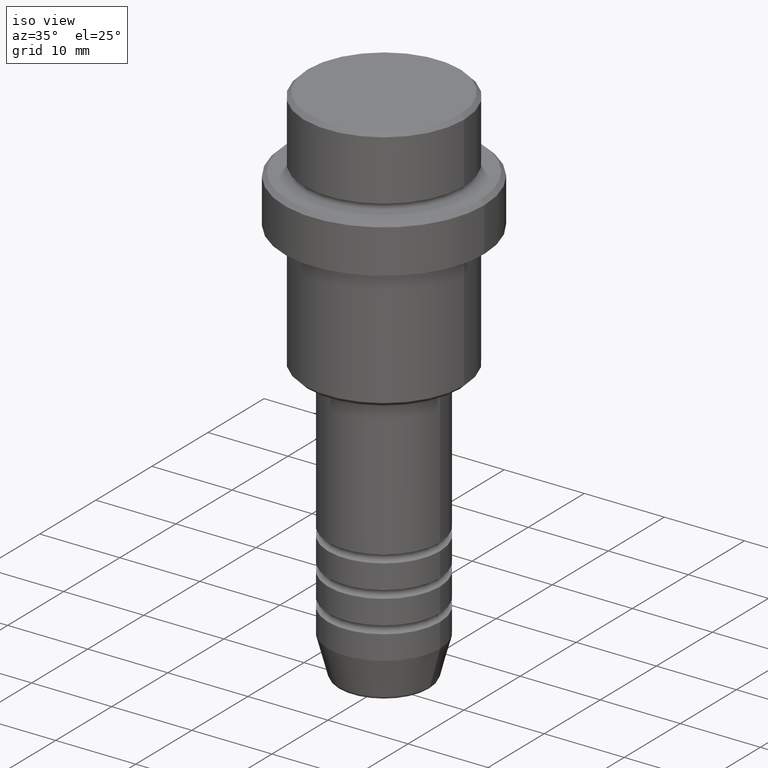
[diagram: clean part render]
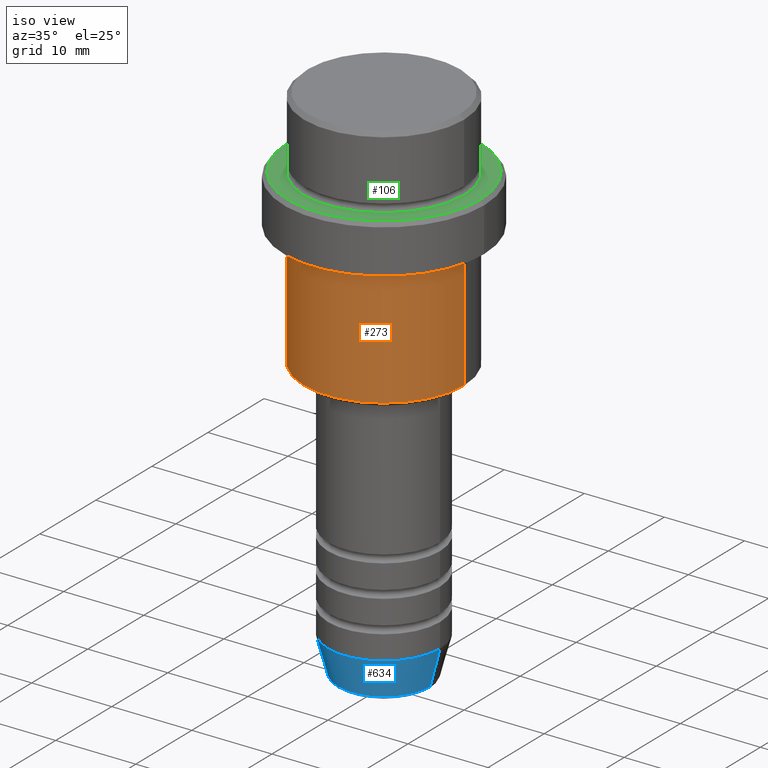
[diagram: same view with three faces highlighted in distinct colors, each labeled with its STEP entity id]
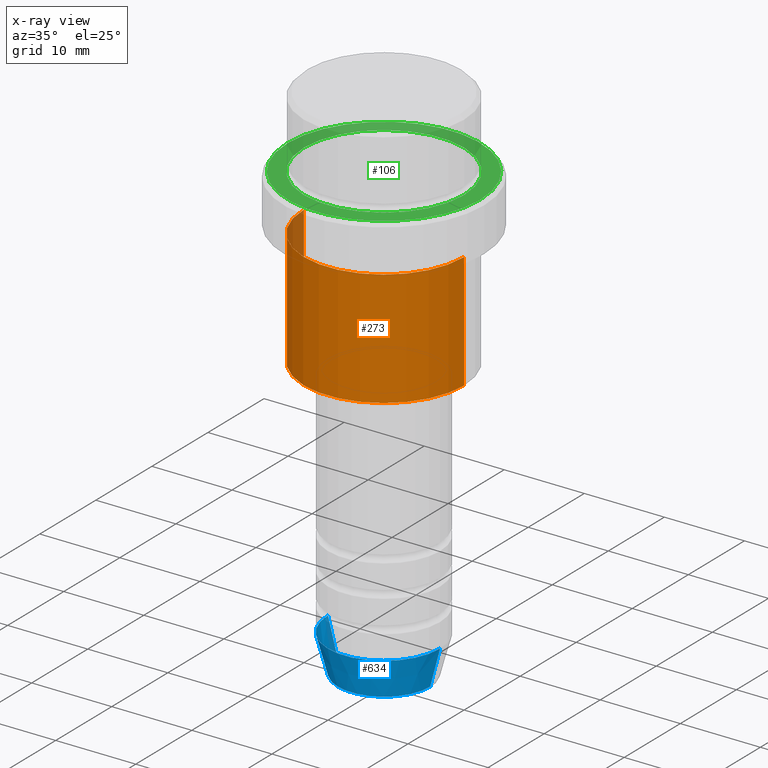
[diagram: x-ray of the same camera — body ghosted, the three highlighted faces saturated]
A machine part, iso view with three faces highlighted in distinct colors.
The next image is the same camera in x-ray (body ghosted, the three faces saturated) — at least one of them is partly hidden behind the body in this view.
Their STEP definitions:

[orange] entity #273 — the highlighted cylindrical surface (partial cylindrical patch) has radius 10 mm, axis along (-0, -0, 1).
#76 = CARTESIAN_POINT ( 'NONE',  ( 10.00000000000000000, 0.000000000000000000, -16.00000000000000000 ) ) ;
#100 = DIRECTION ( 'NONE',  ( -0.000000000000000000, -0.000000000000000000, 1.000000000000000000 ) ) ;
#117 = ORIENTED_EDGE ( 'NONE', *, *, #367, .T. ) ;
#143 = EDGE_CURVE ( 'NONE', #512, #658, #291, .T. ) ;
#144 = EDGE_LOOP ( 'NONE', ( #463, #258, #117, #877 ) ) ;
#258 = ORIENTED_EDGE ( 'NONE', *, *, #618, .T. ) ;
#273 = ADVANCED_FACE ( 'NONE', ( #496 ), #1155, .T. ) ;
#291 = CIRCLE ( 'NONE', #951, 10.00000000000000000 ) ;
#319 = DIRECTION ( 'NONE',  ( 1.000000000000000000, 0.000000000000000000, 0.000000000000000000 ) ) ;
#327 = CARTESIAN_POINT ( 'NONE',  ( 0.000000000000000000, 0.000000000000000000, -30.49999999999998579 ) ) ;
#345 = EDGE_CURVE ( 'NONE', #773, #512, #1361, .T. ) ;
#367 = EDGE_CURVE ( 'NONE', #908, #658, #589, .T. ) ;
#463 = ORIENTED_EDGE ( 'NONE', *, *, #345, .F. ) ;
#469 = AXIS2_PLACEMENT_3D ( 'NONE', #327, #614, #1393 ) ;
#482 = CARTESIAN_POINT ( 'NONE',  ( -10.00000000000000000, 1.224646799147353256E-15, 0.000000000000000000 ) ) ;
#496 = FACE_OUTER_BOUND ( 'NONE', #144, .T. ) ;
#512 = VERTEX_POINT ( 'NONE', #1331 ) ;
#589 = LINE ( 'NONE', #929, #830 ) ;
#614 = DIRECTION ( 'NONE',  ( -0.000000000000000000, -0.000000000000000000, 1.000000000000000000 ) ) ;
#618 = EDGE_CURVE ( 'NONE', #773, #908, #1085, .T. ) ;
#658 = VERTEX_POINT ( 'NONE', #76 ) ;
#675 = DIRECTION ( 'NONE',  ( -0.000000000000000000, -0.000000000000000000, 1.000000000000000000 ) ) ;
#723 = CARTESIAN_POINT ( 'NONE',  ( 10.00000000000000000, 0.000000000000000000, -30.49999999999998579 ) ) ;
#773 = VERTEX_POINT ( 'NONE', #780 ) ;
#780 = CARTESIAN_POINT ( 'NONE',  ( -10.00000000000000000, 1.224646799147353256E-15, -30.49999999999998579 ) ) ;
#825 = CARTESIAN_POINT ( 'NONE',  ( 0.000000000000000000, 0.000000000000000000, 0.000000000000000000 ) ) ;
#830 = VECTOR ( 'NONE', #1118, 1000.000000000000000 ) ;
#877 = ORIENTED_EDGE ( 'NONE', *, *, #143, .F. ) ;
#908 = VERTEX_POINT ( 'NONE', #723 ) ;
#929 = CARTESIAN_POINT ( 'NONE',  ( 10.00000000000000000, 0.000000000000000000, 0.000000000000000000 ) ) ;
#951 = AXIS2_PLACEMENT_3D ( 'NONE', #1301, #100, #319 ) ;
#970 = AXIS2_PLACEMENT_3D ( 'NONE', #825, #1373, #1379 ) ;
#1085 = CIRCLE ( 'NONE', #469, 10.00000000000000000 ) ;
#1118 = DIRECTION ( 'NONE',  ( -0.000000000000000000, -0.000000000000000000, 1.000000000000000000 ) ) ;
#1155 = CYLINDRICAL_SURFACE ( 'NONE', #970, 10.00000000000000000 ) ;
#1206 = VECTOR ( 'NONE', #675, 1000.000000000000000 ) ;
#1301 = CARTESIAN_POINT ( 'NONE',  ( 0.000000000000000000, 0.000000000000000000, -16.00000000000000000 ) ) ;
#1331 = CARTESIAN_POINT ( 'NONE',  ( -10.00000000000000000, 1.224646799147353256E-15, -16.00000000000000000 ) ) ;
#1361 = LINE ( 'NONE', #482, #1206 ) ;
#1373 = DIRECTION ( 'NONE',  ( -0.000000000000000000, -0.000000000000000000, 1.000000000000000000 ) ) ;
#1379 = DIRECTION ( 'NONE',  ( 1.000000000000000000, 0.000000000000000000, 0.000000000000000000 ) ) ;
#1393 = DIRECTION ( 'NONE',  ( -1.000000000000000000, 0.000000000000000000, 0.000000000000000000 ) ) ;

[blue] entity #634 — the highlighted conical surface has half-angle 15 deg.
#29 = LINE ( 'NONE', #693, #1179 ) ;
#48 = CARTESIAN_POINT ( 'NONE',  ( 7.000000000000000000, 0.000000000000000000, -61.00000000000000711 ) ) ;
#83 = ORIENTED_EDGE ( 'NONE', *, *, #733, .F. ) ;
#108 = DIRECTION ( 'NONE',  ( -0.000000000000000000, -0.000000000000000000, 1.000000000000000000 ) ) ;
#122 = DIRECTION ( 'NONE',  ( -0.000000000000000000, -0.000000000000000000, 1.000000000000000000 ) ) ;
#176 = AXIS2_PLACEMENT_3D ( 'NONE', #1105, #122, #779 ) ;
#225 = ORIENTED_EDGE ( 'NONE', *, *, #504, .T. ) ;
#330 = DIRECTION ( 'NONE',  ( -0.2588190451025213501, 3.169619151431772337E-17, 0.9659258262890680902 ) ) ;
#336 = VERTEX_POINT ( 'NONE', #48 ) ;
#391 = VERTEX_POINT ( 'NONE', #691 ) ;
#487 = DIRECTION ( 'NONE',  ( 1.000000000000000000, 0.000000000000000000, 0.000000000000000000 ) ) ;
#504 = EDGE_CURVE ( 'NONE', #1009, #547, #517, .T. ) ;
#517 = CIRCLE ( 'NONE', #176, 5.759553456999435994 ) ;
#531 = EDGE_CURVE ( 'NONE', #547, #336, #29, .T. ) ;
#547 = VERTEX_POINT ( 'NONE', #1138 ) ;
#551 = ORIENTED_EDGE ( 'NONE', *, *, #531, .T. ) ;
#574 = DIRECTION ( 'NONE',  ( -0.000000000000000000, -0.000000000000000000, 1.000000000000000000 ) ) ;
#578 = DIRECTION ( 'NONE',  ( 0.2588190451025213501, 0.000000000000000000, 0.9659258262890680902 ) ) ;
#634 = ADVANCED_FACE ( 'NONE', ( #1005 ), #1027, .T. ) ;
#691 = CARTESIAN_POINT ( 'NONE',  ( -7.000000000000000000, 8.572527594031473190E-16, -61.00000000000000711 ) ) ;
#693 = CARTESIAN_POINT ( 'NONE',  ( 7.000000000000000000, 0.000000000000000000, -61.00000000000000711 ) ) ;
#733 = EDGE_CURVE ( 'NONE', #391, #336, #1053, .T. ) ;
#748 = EDGE_LOOP ( 'NONE', ( #1383, #225, #551, #83 ) ) ;
#762 = AXIS2_PLACEMENT_3D ( 'NONE', #792, #108, #1239 ) ;
#779 = DIRECTION ( 'NONE',  ( 1.000000000000000000, 0.000000000000000000, 0.000000000000000000 ) ) ;
#792 = CARTESIAN_POINT ( 'NONE',  ( 0.000000000000000000, 0.000000000000000000, -61.00000000000000711 ) ) ;
#858 = VECTOR ( 'NONE', #330, 1000.000000000000000 ) ;
#896 = CARTESIAN_POINT ( 'NONE',  ( 0.000000000000000000, 0.000000000000000000, -61.00000000000000711 ) ) ;
#1005 = FACE_OUTER_BOUND ( 'NONE', #748, .T. ) ;
#1009 = VERTEX_POINT ( 'NONE', #1292 ) ;
#1027 = CONICAL_SURFACE ( 'NONE', #762, 7.000000000000000000, 0.2617993877991500740 ) ;
#1053 = CIRCLE ( 'NONE', #1087, 7.000000000000000000 ) ;
#1072 = EDGE_CURVE ( 'NONE', #1009, #391, #1212, .T. ) ;
#1076 = CARTESIAN_POINT ( 'NONE',  ( -7.000000000000000000, 8.572527594031473190E-16, -61.00000000000000711 ) ) ;
#1087 = AXIS2_PLACEMENT_3D ( 'NONE', #896, #574, #487 ) ;
#1105 = CARTESIAN_POINT ( 'NONE',  ( 0.000000000000000000, 0.000000000000000000, -65.62940952255127058 ) ) ;
#1138 = CARTESIAN_POINT ( 'NONE',  ( 5.759553456999435994, 0.000000000000000000, -65.62940952255127058 ) ) ;
#1179 = VECTOR ( 'NONE', #578, 1000.000000000000000 ) ;
#1212 = LINE ( 'NONE', #1076, #858 ) ;
#1239 = DIRECTION ( 'NONE',  ( 1.000000000000000000, 0.000000000000000000, 0.000000000000000000 ) ) ;
#1292 = CARTESIAN_POINT ( 'NONE',  ( -5.759553456999435994, 7.812973149831952759E-16, -65.62940952255127058 ) ) ;
#1383 = ORIENTED_EDGE ( 'NONE', *, *, #1072, .F. ) ;

[green] entity #106 — the highlighted planar face has unit normal (0, -0, 1).
#7 = CIRCLE ( 'NONE', #1268, 12.00000000000000355 ) ;
#35 = AXIS2_PLACEMENT_3D ( 'NONE', #905, #36, #256 ) ;
#36 = DIRECTION ( 'NONE',  ( -0.000000000000000000, -0.000000000000000000, 1.000000000000000000 ) ) ;
#66 = DIRECTION ( 'NONE',  ( 1.000000000000000000, 0.000000000000000000, 0.000000000000000000 ) ) ;
#73 = DIRECTION ( 'NONE',  ( 1.000000000000000000, 0.000000000000000000, 0.000000000000000000 ) ) ;
#94 = AXIS2_PLACEMENT_3D ( 'NONE', #190, #1193, #1063 ) ;
#106 = ADVANCED_FACE ( 'NONE', ( #1401, #740 ), #305, .T. ) ;
#156 = CIRCLE ( 'NONE', #1231, 9.999999999999994671 ) ;
#184 = ORIENTED_EDGE ( 'NONE', *, *, #1263, .T. ) ;
#190 = CARTESIAN_POINT ( 'NONE',  ( 0.000000000000000000, 9.499999999999994671, -9.000000000000001776 ) ) ;
#195 = CIRCLE ( 'NONE', #35, 12.00000000000000355 ) ;
#204 = DIRECTION ( 'NONE',  ( -0.000000000000000000, -0.000000000000000000, 1.000000000000000000 ) ) ;
#206 = EDGE_CURVE ( 'NONE', #328, #394, #7, .T. ) ;
#242 = DIRECTION ( 'NONE',  ( 0.000000000000000000, 0.000000000000000000, -1.000000000000000000 ) ) ;
#256 = DIRECTION ( 'NONE',  ( 1.000000000000000000, 0.000000000000000000, 0.000000000000000000 ) ) ;
#305 = PLANE ( 'NONE',  #94 ) ;
#326 = ORIENTED_EDGE ( 'NONE', *, *, #1330, .T. ) ;
#328 = VERTEX_POINT ( 'NONE', #1258 ) ;
#372 = EDGE_CURVE ( 'NONE', #394, #328, #195, .T. ) ;
#394 = VERTEX_POINT ( 'NONE', #559 ) ;
#407 = ORIENTED_EDGE ( 'NONE', *, *, #206, .T. ) ;
#486 = DIRECTION ( 'NONE',  ( 1.000000000000000000, 0.000000000000000000, 0.000000000000000000 ) ) ;
#542 = CARTESIAN_POINT ( 'NONE',  ( 0.000000000000000000, 0.000000000000000000, -9.000000000000001776 ) ) ;
#546 = VERTEX_POINT ( 'NONE', #918 ) ;
#559 = CARTESIAN_POINT ( 'NONE',  ( 12.00000000000000355, 1.500192328955507734E-15, -9.000000000000001776 ) ) ;
#684 = VERTEX_POINT ( 'NONE', #728 ) ;
#728 = CARTESIAN_POINT ( 'NONE',  ( 9.999999999999994671, 0.000000000000000000, -9.000000000000001776 ) ) ;
#740 = FACE_BOUND ( 'NONE', #1196, .T. ) ;
#766 = EDGE_LOOP ( 'NONE', ( #407, #1291 ) ) ;
#905 = CARTESIAN_POINT ( 'NONE',  ( 0.000000000000000000, 0.000000000000000000, -9.000000000000001776 ) ) ;
#918 = CARTESIAN_POINT ( 'NONE',  ( -9.999999999999994671, 1.224646799147352665E-15, -9.000000000000001776 ) ) ;
#936 = CARTESIAN_POINT ( 'NONE',  ( 0.000000000000000000, 0.000000000000000000, -9.000000000000001776 ) ) ;
#1030 = CARTESIAN_POINT ( 'NONE',  ( 0.000000000000000000, 0.000000000000000000, -9.000000000000001776 ) ) ;
#1052 = DIRECTION ( 'NONE',  ( 0.000000000000000000, 0.000000000000000000, -1.000000000000000000 ) ) ;
#1063 = DIRECTION ( 'NONE',  ( 1.000000000000000000, 0.000000000000000000, 0.000000000000000000 ) ) ;
#1112 = AXIS2_PLACEMENT_3D ( 'NONE', #1030, #242, #486 ) ;
#1193 = DIRECTION ( 'NONE',  ( 0.000000000000000000, -0.000000000000000000, 1.000000000000000000 ) ) ;
#1196 = EDGE_LOOP ( 'NONE', ( #326, #184 ) ) ;
#1231 = AXIS2_PLACEMENT_3D ( 'NONE', #936, #1052, #66 ) ;
#1258 = CARTESIAN_POINT ( 'NONE',  ( -12.00000000000000355, 0.000000000000000000, -9.000000000000001776 ) ) ;
#1263 = EDGE_CURVE ( 'NONE', #546, #684, #1405, .T. ) ;
#1268 = AXIS2_PLACEMENT_3D ( 'NONE', #542, #204, #73 ) ;
#1291 = ORIENTED_EDGE ( 'NONE', *, *, #372, .T. ) ;
#1330 = EDGE_CURVE ( 'NONE', #684, #546, #156, .T. ) ;
#1401 = FACE_OUTER_BOUND ( 'NONE', #766, .T. ) ;
#1405 = CIRCLE ( 'NONE', #1112, 9.999999999999994671 ) ;